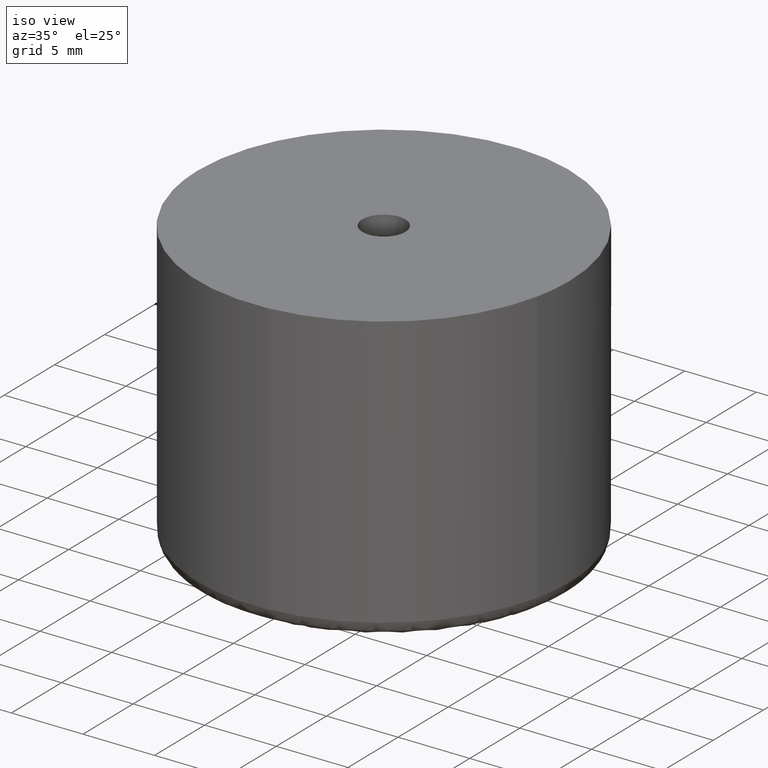
[diagram: clean part render]
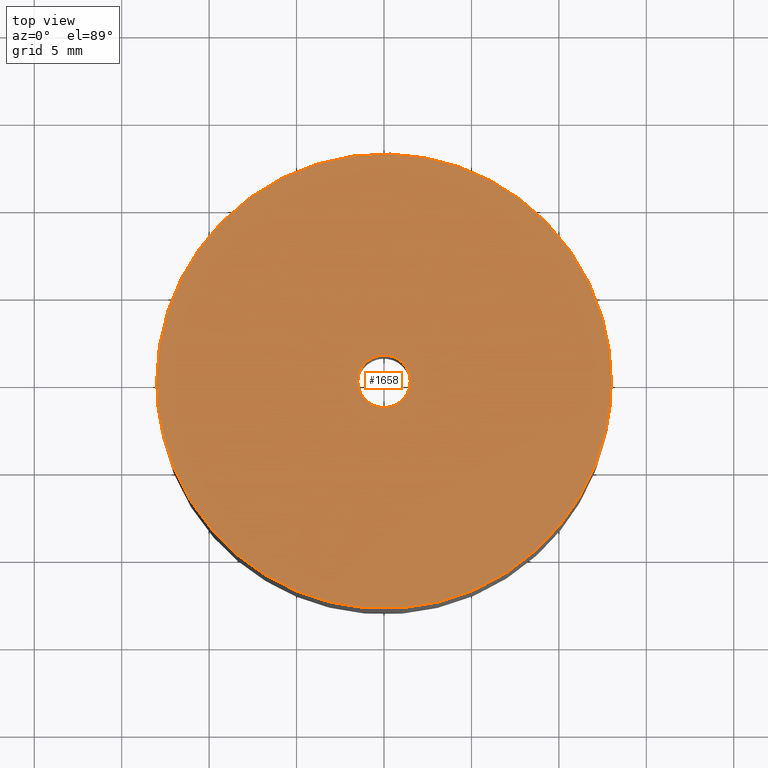
[diagram: tour spotlight — one face highlighted and labeled with its STEP entity id]
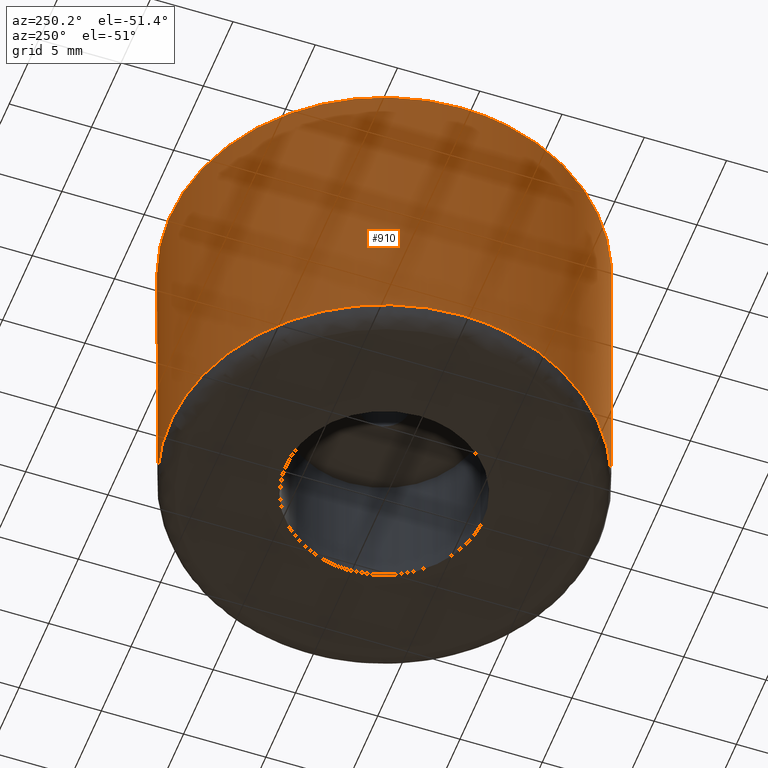
[diagram: tour spotlight — one face highlighted and labeled with its STEP entity id]
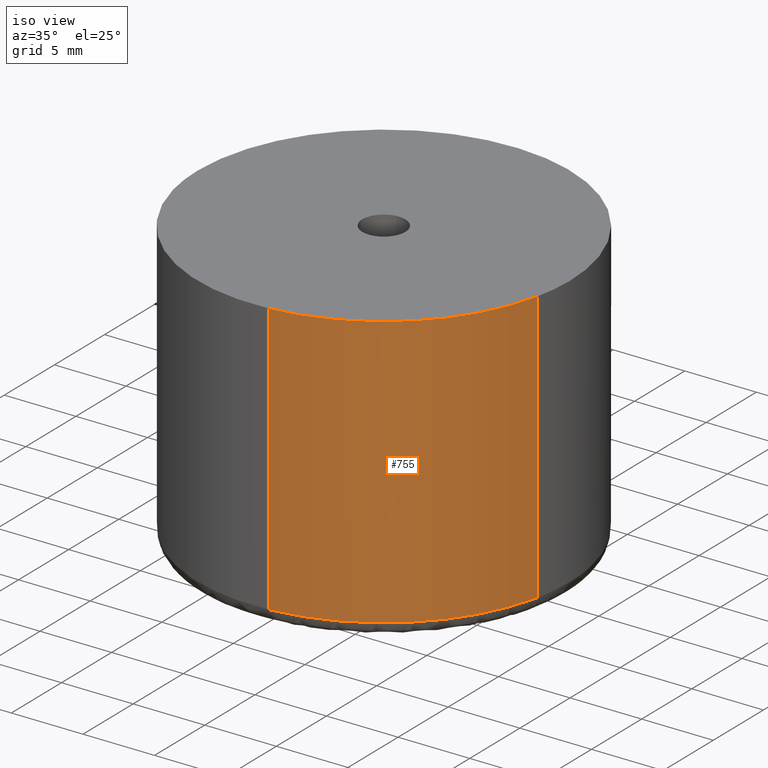
[diagram: tour spotlight — one face highlighted and labeled with its STEP entity id]
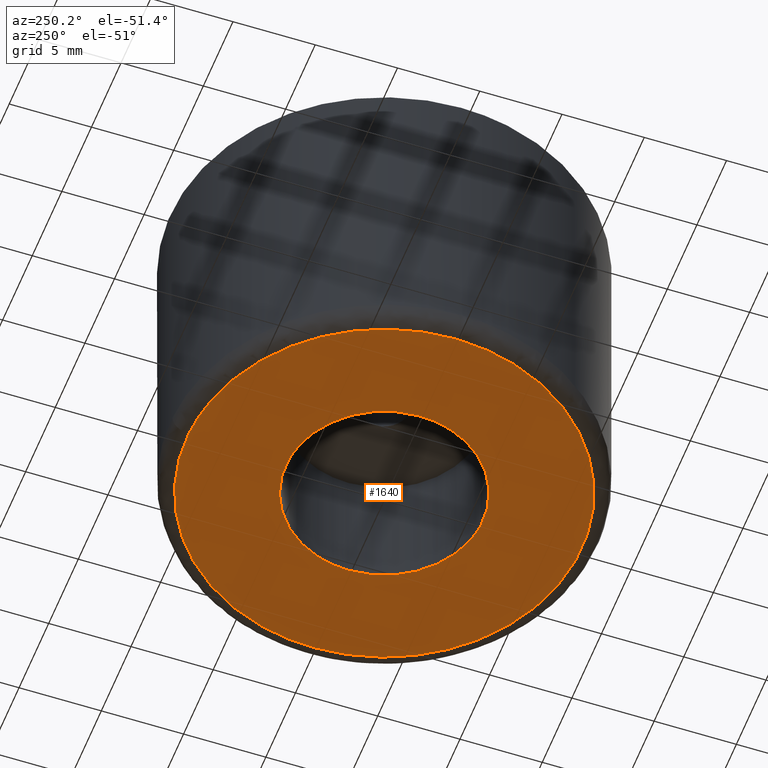
[diagram: tour spotlight — one face highlighted and labeled with its STEP entity id]
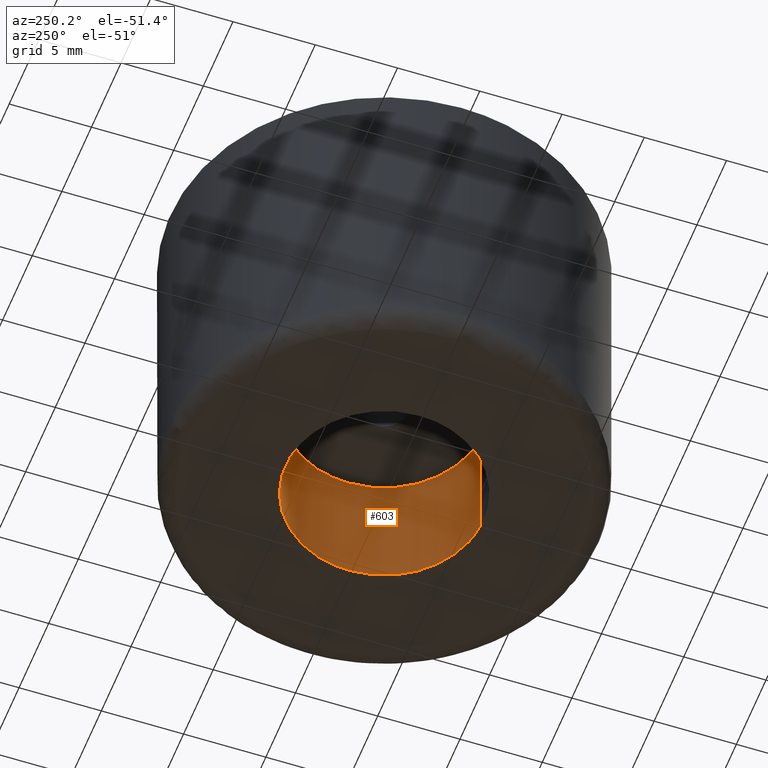
[diagram: tour spotlight — one face highlighted and labeled with its STEP entity id]
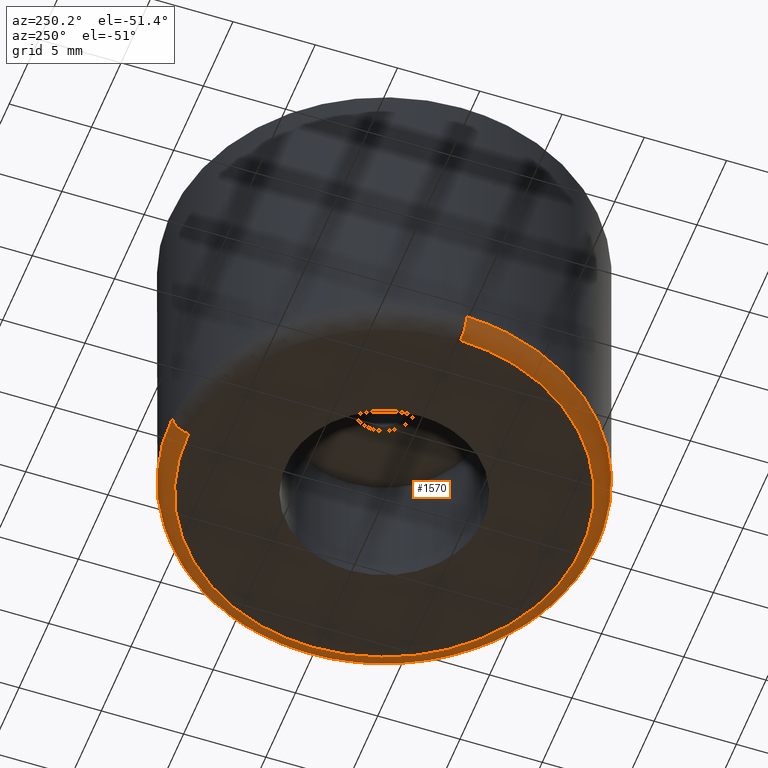
[diagram: tour spotlight — one face highlighted and labeled with its STEP entity id]
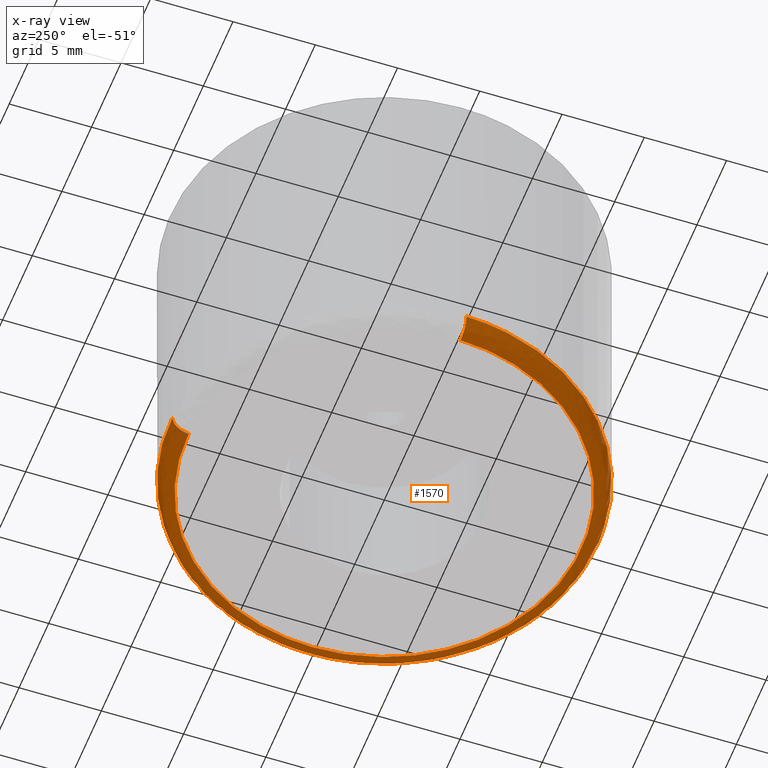
[diagram: x-ray of the same camera — body ghosted, this tour face saturated]
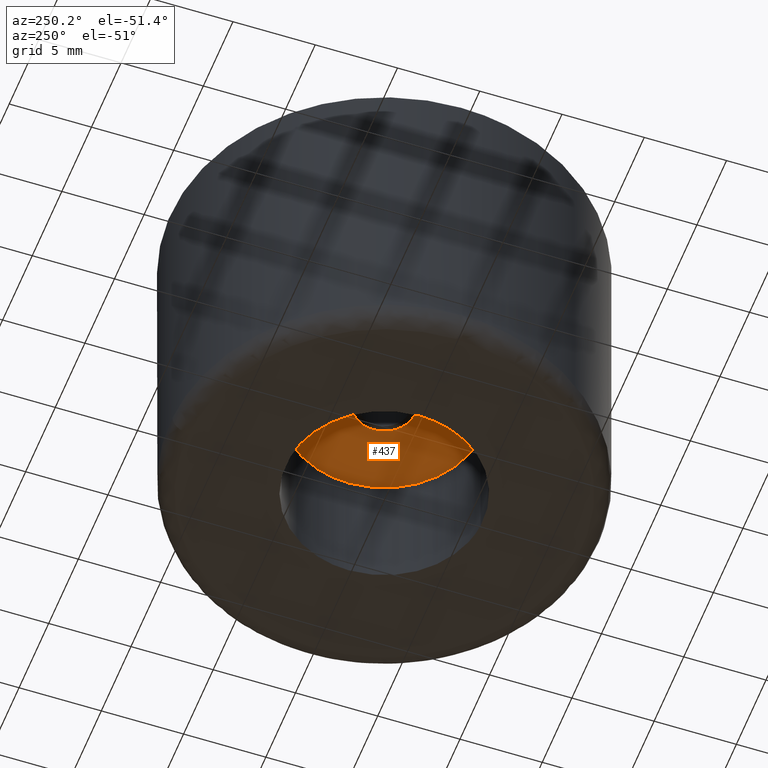
[diagram: tour spotlight — one face highlighted and labeled with its STEP entity id]
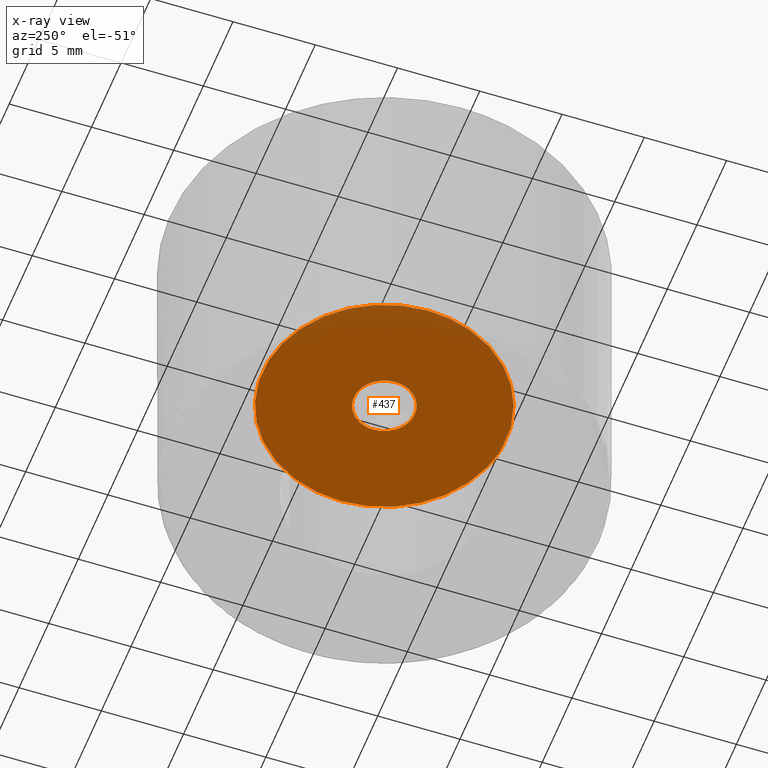
[diagram: x-ray of the same camera — body ghosted, this tour face saturated]
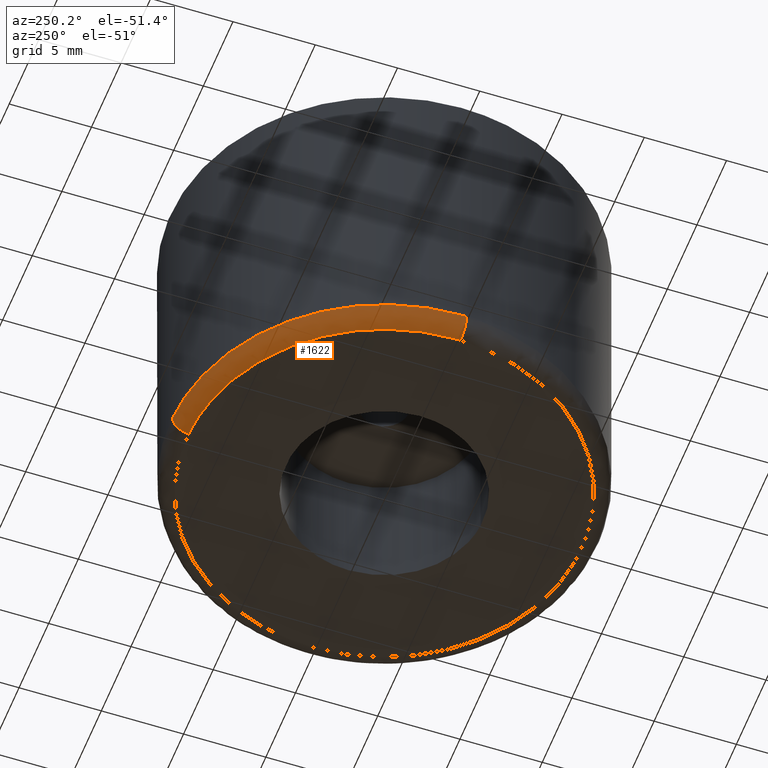
[diagram: tour spotlight — one face highlighted and labeled with its STEP entity id]
A machine part: a face-by-face anatomy tour. The part has 23 B-rep faces; the first image is the clean iso view, then the 8 largest visible faces are spotlighted one at a time (largest first), each with its STEP entity span.

Face 1 — top view, entity #1658. In plain terms, the highlighted face is a freeform B-spline surface patch.
Definition (entity closure, byte-faithful):
#726=CARTESIAN_POINT('',(12.687596976655650,-2.832822436703005,20.0));
#727=VERTEX_POINT('',#726);
#733=CARTESIAN_POINT('',(1.019960790914386,-12.959925925133270,20.0));
#734=VERTEX_POINT('',#733);
#735=CARTESIAN_POINT('',(12.687596976655650,-2.832822436703005,19.999999999999996));
#736=CARTESIAN_POINT('',(10.594716066193335,-12.206381883309835,20.000000000000004));
#737=CARTESIAN_POINT('',(1.019960790914386,-12.959925925133268,20.000000000000004));
#745=(BOUNDED_CURVE()B_SPLINE_CURVE(2,(#735,#736,#737),.UNSPECIFIED.,.F.,.U.)B_SPLINE_CURVE_WITH_KNOTS((3,3),(0.537286561689504,0.736331399222893),.UNSPECIFIED.)CURVE()GEOMETRIC_REPRESENTATION_ITEM()RATIONAL_B_SPLINE_CURVE((0.925662738128303,0.762027682414940,0.969723561921979))REPRESENTATION_ITEM(''));
#746=EDGE_CURVE('',#727,#734,#745,.T.);
#860=CARTESIAN_POINT('',(-13.0,0.0,20.0));
#861=VERTEX_POINT('',#860);
#862=CARTESIAN_POINT('',(1.019960790914386,-12.959925925133268,20.000000000000004));
#863=CARTESIAN_POINT('',(0.510767647031337,-13.0,20.0));
#864=CARTESIAN_POINT('',(0.0,-13.0,20.0));
#865=CARTESIAN_POINT('',(-13.0,-13.0,20.0));
#866=CARTESIAN_POINT('',(-13.0,0.0,20.0));
#874=(BOUNDED_CURVE()B_SPLINE_CURVE(2,(#862,#863,#864,#865,#866),.UNSPECIFIED.,.F.,.U.)B_SPLINE_CURVE_WITH_KNOTS((3,2,3),(0.736331399222893,0.750000000000000,1.0),.UNSPECIFIED.)CURVE()GEOMETRIC_REPRESENTATION_ITEM()RATIONAL_B_SPLINE_CURVE((0.969723561921979,0.983986238086868,1.0,0.707106781186547,1.0))REPRESENTATION_ITEM(''));
#875=EDGE_CURVE('',#734,#861,#874,.T.);
#877=CARTESIAN_POINT('',(13.0,0.0,20.0));
#878=VERTEX_POINT('',#877);
#879=CARTESIAN_POINT('',(-13.0,0.0,20.0));
#880=CARTESIAN_POINT('',(-13.0,13.0,20.0));
#881=CARTESIAN_POINT('',(0.0,13.0,20.0));
#882=CARTESIAN_POINT('',(13.0,13.0,20.0));
#883=CARTESIAN_POINT('',(13.0,0.0,20.0));
#891=(BOUNDED_CURVE()B_SPLINE_CURVE(2,(#879,#880,#881,#882,#883),.UNSPECIFIED.,.F.,.U.)B_SPLINE_CURVE_WITH_KNOTS((3,2,3),(0.0,0.250000000000000,0.500000000000000),.UNSPECIFIED.)CURVE()GEOMETRIC_REPRESENTATION_ITEM()RATIONAL_B_SPLINE_CURVE((1.0,0.707106781186547,1.0,0.707106781186547,1.0))REPRESENTATION_ITEM(''));
#892=EDGE_CURVE('',#861,#878,#891,.T.);
#894=CARTESIAN_POINT('',(13.0,0.0,20.0));
#895=CARTESIAN_POINT('',(13.000000000000005,-1.433637086046247,20.000000000000004));
#896=CARTESIAN_POINT('',(12.687596976655650,-2.832822436703005,19.999999999999996));
#904=(BOUNDED_CURVE()B_SPLINE_CURVE(2,(#894,#895,#896),.UNSPECIFIED.,.F.,.U.)B_SPLINE_CURVE_WITH_KNOTS((3,3),(0.500000000000000,0.537286561689504),.UNSPECIFIED.)CURVE()GEOMETRIC_REPRESENTATION_ITEM()RATIONAL_B_SPLINE_CURVE((1.0,0.956316075713099,0.925662738128303))REPRESENTATION_ITEM(''));
#905=EDGE_CURVE('',#878,#727,#904,.T.);
#933=CARTESIAN_POINT('',(-0.177051352032236,1.489514289539901,20.0));
#934=VERTEX_POINT('',#933);
#935=CARTESIAN_POINT('',(1.500000000000000,0.0,20.0));
#936=VERTEX_POINT('',#935);
#937=CARTESIAN_POINT('',(-0.177051352032236,1.489514289539901,19.999999999999996));
#938=CARTESIAN_POINT('',(-0.088836179525462,1.500000000000000,20.000000000000004));
#939=CARTESIAN_POINT('',(0.0,1.500000000000000,20.0));
#940=CARTESIAN_POINT('',(1.500000000000000,1.500000000000000,19.999999999999996));
#941=CARTESIAN_POINT('',(1.500000000000000,0.0,20.0));
#949=(BOUNDED_CURVE()B_SPLINE_CURVE(2,(#937,#938,#939,#940,#941),.UNSPECIFIED.,.F.,.U.)B_SPLINE_CURVE_WITH_KNOTS((3,2,3),(0.229562473504956,0.250000000000000,0.500000000000000),.UNSPECIFIED.)CURVE()GEOMETRIC_REPRESENTATION_ITEM()RATIONAL_B_SPLINE_CURVE((0.956026754166937,0.976055948321126,1.0,0.707106781186548,1.0))REPRESENTATION_ITEM(''));
#950=EDGE_CURVE('',#934,#936,#949,.T.);
#991=CARTESIAN_POINT('',(0.091572809317482,-1.497202197631871,20.0));
#992=VERTEX_POINT('',#991);
#998=CARTESIAN_POINT('',(1.500000000000000,0.0,20.0));
#999=CARTESIAN_POINT('',(1.500000000000000,-1.411059100329843,20.0));
#1000=CARTESIAN_POINT('',(0.091572809317482,-1.497202197631871,20.0));
#1008=(BOUNDED_CURVE()B_SPLINE_CURVE(2,(#998,#999,#1000),.UNSPECIFIED.,.F.,.U.)B_SPLINE_CURVE_WITH_KNOTS((3,3),(0.500000000000000,0.739332962238465),.UNSPECIFIED.)CURVE()GEOMETRIC_REPRESENTATION_ITEM()RATIONAL_B_SPLINE_CURVE((1.0,0.719603993287270,0.976072041665695))REPRESENTATION_ITEM(''));
#1009=EDGE_CURVE('',#936,#992,#1008,.T.);
#1032=CARTESIAN_POINT('',(-1.500000000000000,0.0,20.0));
#1033=VERTEX_POINT('',#1032);
#1034=CARTESIAN_POINT('',(-1.500000000000000,0.0,20.0));
#1035=CARTESIAN_POINT('',(-1.500000000000000,1.332261788842205,20.000000000000004));
#1036=CARTESIAN_POINT('',(-0.177051352032237,1.489514289539901,20.000000000000004));
#1044=(BOUNDED_CURVE()B_SPLINE_CURVE(2,(#1034,#1035,#1036),.UNSPECIFIED.,.F.,.U.)B_SPLINE_CURVE_WITH_KNOTS((3,3),(0.0,0.229562473504956),.UNSPECIFIED.)CURVE()GEOMETRIC_REPRESENTATION_ITEM()RATIONAL_B_SPLINE_CURVE((1.0,0.731050832865422,0.956026754166937))REPRESENTATION_ITEM(''));
#1045=EDGE_CURVE('',#1033,#934,#1044,.T.);
#1047=CARTESIAN_POINT('',(0.091572809317482,-1.497202197631870,20.0));
#1048=CARTESIAN_POINT('',(0.045829144963122,-1.500000000000000,19.999999999999996));
#1049=CARTESIAN_POINT('',(0.0,-1.500000000000000,20.0));
#1050=CARTESIAN_POINT('',(-1.500000000000000,-1.500000000000000,19.999999999999996));
#1051=CARTESIAN_POINT('',(-1.500000000000000,0.0,20.0));
#1059=(BOUNDED_CURVE()B_SPLINE_CURVE(2,(#1047,#1048,#1049,#1050,#1051),.UNSPECIFIED.,.F.,.U.)B_SPLINE_CURVE_WITH_KNOTS((3,2,3),(0.739332962238466,0.750000000000000,1.0),.UNSPECIFIED.)CURVE()GEOMETRIC_REPRESENTATION_ITEM()RATIONAL_B_SPLINE_CURVE((0.976072041665695,0.987502787899278,1.0,0.707106781186548,1.0))REPRESENTATION_ITEM(''));
#1060=EDGE_CURVE('',#992,#1033,#1059,.T.);
#1641=CARTESIAN_POINT('',(14.298699949606950,-14.294911992558539,20.0));
#1642=CARTESIAN_POINT('',(-14.298700646981301,-14.294911992558539,20.0));
#1643=CARTESIAN_POINT('',(14.298699949606950,14.298520439871851,20.0));
#1644=CARTESIAN_POINT('',(-14.298700646981301,14.298520439871851,20.0));
#1645=B_SPLINE_SURFACE_WITH_KNOTS('',1,1,((#1641,#1643),(#1642,#1644)),.UNSPECIFIED.,.F.,.F.,.U.,(2,2),(2,2),(0.0,28.597400596588251),(0.0,28.593432432430379),.UNSPECIFIED.);
#1646=ORIENTED_EDGE('',*,*,#875,.F.);
#1647=ORIENTED_EDGE('',*,*,#746,.F.);
#1648=ORIENTED_EDGE('',*,*,#905,.F.);
#1649=ORIENTED_EDGE('',*,*,#892,.F.);
#1650=EDGE_LOOP('',(#1646,#1647,#1648,#1649));
#1651=FACE_OUTER_BOUND('',#1650,.T.);
#1652=ORIENTED_EDGE('',*,*,#1009,.T.);
#1653=ORIENTED_EDGE('',*,*,#1060,.T.);
#1654=ORIENTED_EDGE('',*,*,#1045,.T.);
#1655=ORIENTED_EDGE('',*,*,#950,.T.);
#1656=EDGE_LOOP('',(#1652,#1653,#1654,#1655));
#1657=FACE_BOUND('',#1656,.T.);
#1658=ADVANCED_FACE('',(#1651,#1657),#1645,.F.);

Face 2 — auxiliary view, entity #910. In plain terms, the highlighted face is a freeform B-spline surface patch.
Definition (entity closure, byte-faithful):
#709=CARTESIAN_POINT('',(12.687596999485550,-2.832822334452530,1.000000000000004));
#710=VERTEX_POINT('',#709);
#711=CARTESIAN_POINT('',(1.019960697844671,-12.959925932457899,1.000000000000026));
#712=VERTEX_POINT('',#711);
#726=CARTESIAN_POINT('',(12.687596976655650,-2.832822436703005,20.0));
#727=VERTEX_POINT('',#726);
#728=CARTESIAN_POINT('',(12.687596976655650,-2.832822436703005,20.0));
#729=CARTESIAN_POINT('',(12.687596999485550,-2.832822334452530,1.000000000000004));
#730=QUASI_UNIFORM_CURVE('',1,(#728,#729),.UNSPECIFIED.,.F.,.U.);
#731=EDGE_CURVE('',#727,#710,#730,.T.);
#733=CARTESIAN_POINT('',(1.019960790914386,-12.959925925133270,20.0));
#734=VERTEX_POINT('',#733);
#748=CARTESIAN_POINT('',(1.019960790914386,-12.959925925133270,20.0));
#749=CARTESIAN_POINT('',(1.019960697844671,-12.959925932457899,1.000000000000026));
#750=QUASI_UNIFORM_CURVE('',1,(#748,#749),.UNSPECIFIED.,.F.,.U.);
#751=EDGE_CURVE('',#734,#712,#750,.T.);
#756=CARTESIAN_POINT('',(1.019968244461983,-12.959925338530660,20.475000000003600));
#757=CARTESIAN_POINT('',(-11.939957094068674,-13.979893582992641,20.475000000003604));
#758=CARTESIAN_POINT('',(-12.959925338530660,-1.019968244461983,20.475000000003600));
#759=CARTESIAN_POINT('',(-13.979893582992641,11.939957094068674,20.475000000003604));
#760=CARTESIAN_POINT('',(-1.019968244461983,12.959925338530660,20.475000000003600));
#761=CARTESIAN_POINT('',(11.939957094068674,13.979893582992641,20.475000000003604));
#762=CARTESIAN_POINT('',(12.959925338530660,1.019968244461983,20.475000000003600));
#763=CARTESIAN_POINT('',(13.113146095097436,-0.926886058307065,20.475000000003597));
#764=CARTESIAN_POINT('',(12.687595149701604,-2.832830619233736,20.475000000003593));
#765=CARTESIAN_POINT('',(1.019968244461983,-12.959925338530660,0.513124999852447));
#766=CARTESIAN_POINT('',(-11.939957094068674,-13.979893582992641,0.513124999852447));
#767=CARTESIAN_POINT('',(-12.959925338530660,-1.019968244461983,0.513124999852447));
#768=CARTESIAN_POINT('',(-13.979893582992641,11.939957094068674,0.513124999852447));
#769=CARTESIAN_POINT('',(-1.019968244461983,12.959925338530660,0.513124999852447));
#770=CARTESIAN_POINT('',(11.939957094068674,13.979893582992641,0.513124999852447));
#771=CARTESIAN_POINT('',(12.959925338530660,1.019968244461983,0.513124999852447));
#772=CARTESIAN_POINT('',(13.113146095097436,-0.926886058307065,0.513124999852447));
#773=CARTESIAN_POINT('',(12.687595149701604,-2.832830619233736,0.513124999852447));
#781=(BOUNDED_SURFACE()B_SPLINE_SURFACE(2,1,((#756,#765),(#757,#766),(#758,#767),(#759,#768),(#760,#769),(#761,#770),(#762,#771),(#763,#772),(#764,#773)),.UNSPECIFIED.,.F.,.F.,.U.)B_SPLINE_SURFACE_WITH_KNOTS((3,2,2,2,3),(2,2),(0.0,21.539105243400929,43.078210486801872,64.617315730202805,68.925136778882987),(0.0,19.961875000151149),.UNSPECIFIED.)GEOMETRIC_REPRESENTATION_ITEM()RATIONAL_B_SPLINE_SURFACE(((1.0,1.0),(0.707106781186548,0.707106781186548),(1.0,1.0),(0.707106781186548,0.707106781186548),(1.0,1.0),(0.707106781186548,0.707106781186548),(1.0,1.0),(0.941421356237310,0.941421356237310),(0.906274169979695,0.906274169979695)))REPRESENTATION_ITEM('')SURFACE());
#782=CARTESIAN_POINT('',(13.0,0.0,1.000000000000014));
#783=VERTEX_POINT('',#782);
#784=CARTESIAN_POINT('',(13.0,0.0,1.000000000000014));
#785=CARTESIAN_POINT('',(12.999999999999996,-1.433637033025100,1.000000000000014));
#786=CARTESIAN_POINT('',(12.687596999485551,-2.832822334452530,1.000000000000004));
#794=(BOUNDED_CURVE()B_SPLINE_CURVE(2,(#784,#785,#786),.UNSPECIFIED.,.F.,.U.)B_SPLINE_CURVE_WITH_KNOTS((3,3),(0.500000000000000,0.537286560370751),.UNSPECIFIED.)CURVE()GEOMETRIC_REPRESENTATION_ITEM()RATIONAL_B_SPLINE_CURVE((1.0,0.956316077258115,0.925662740296602))REPRESENTATION_ITEM(''));
#795=EDGE_CURVE('',#783,#710,#794,.T.);
#796=ORIENTED_EDGE('',*,*,#795,.F.);
#797=CARTESIAN_POINT('',(-0.326691240763947,12.995894460682880,0.999999999856145));
#798=VERTEX_POINT('',#797);
#799=CARTESIAN_POINT('',(-0.326691240763947,12.995894460682887,0.999999999856145));
#800=CARTESIAN_POINT('',(-0.163371417604494,13.000000000000004,1.000000000000014));
#801=CARTESIAN_POINT('',(0.0,13.0,1.000000000000014));
#802=CARTESIAN_POINT('',(13.0,13.0,1.000000000000014));
#803=CARTESIAN_POINT('',(13.0,0.0,1.000000000000014));
#811=(BOUNDED_CURVE()B_SPLINE_CURVE(2,(#799,#800,#801,#802,#803),.UNSPECIFIED.,.F.,.U.)B_SPLINE_CURVE_WITH_KNOTS((3,2,3),(0.245579891769793,0.250000000000000,0.500000000000000),.UNSPECIFIED.)CURVE()GEOMETRIC_REPRESENTATION_ITEM()RATIONAL_B_SPLINE_CURVE((0.989826157681542,0.994821521091803,1.0,0.707106781186547,1.0))REPRESENTATION_ITEM(''));
#812=EDGE_CURVE('',#798,#783,#811,.T.);
#813=ORIENTED_EDGE('',*,*,#812,.F.);
#814=CARTESIAN_POINT('',(-13.0,0.0,1.000000000000014));
#815=VERTEX_POINT('',#814);
#816=CARTESIAN_POINT('',(-13.0,0.0,1.000000000000014));
#817=CARTESIAN_POINT('',(-13.000000000000002,12.677312390347351,1.000000000000014));
#818=CARTESIAN_POINT('',(-0.326691240763947,12.995894460682887,0.999999999856145));
#826=(BOUNDED_CURVE()B_SPLINE_CURVE(2,(#816,#817,#818),.UNSPECIFIED.,.F.,.U.)B_SPLINE_CURVE_WITH_KNOTS((3,3),(0.0,0.245579891769793),.UNSPECIFIED.)CURVE()GEOMETRIC_REPRESENTATION_ITEM()RATIONAL_B_SPLINE_CURVE((1.0,0.712285260094745,0.989826157681542))REPRESENTATION_ITEM(''));
#827=EDGE_CURVE('',#815,#798,#826,.T.);
#828=ORIENTED_EDGE('',*,*,#827,.F.);
#829=CARTESIAN_POINT('',(-12.995894460682891,-0.326691240763720,0.999999999856132));
#830=VERTEX_POINT('',#829);
#831=CARTESIAN_POINT('',(-12.995894460682889,-0.326691240763720,0.999999999856132));
#832=CARTESIAN_POINT('',(-13.000000000000002,-0.163371417604268,1.000000000000014));
#833=CARTESIAN_POINT('',(-13.0,0.0,1.000000000000014));
#841=(BOUNDED_CURVE()B_SPLINE_CURVE(2,(#831,#832,#833),.UNSPECIFIED.,.F.,.U.)B_SPLINE_CURVE_WITH_KNOTS((3,3),(0.995579891769799,1.0),.UNSPECIFIED.)CURVE()GEOMETRIC_REPRESENTATION_ITEM()RATIONAL_B_SPLINE_CURVE((0.989826157681556,0.994821521091810,1.0))REPRESENTATION_ITEM(''));
#842=EDGE_CURVE('',#830,#815,#841,.T.);
#843=ORIENTED_EDGE('',*,*,#842,.F.);
#844=CARTESIAN_POINT('',(1.019960697844671,-12.959925932457905,1.000000000000026));
#845=CARTESIAN_POINT('',(0.510767600280531,-13.000000000000004,1.000000000000014));
#846=CARTESIAN_POINT('',(0.0,-13.0,1.000000000000014));
#847=CARTESIAN_POINT('',(-12.677312390347860,-13.0,1.000000000000014));
#848=CARTESIAN_POINT('',(-12.995894460682889,-0.326691240763720,0.999999999856132));
#856=(BOUNDED_CURVE()B_SPLINE_CURVE(2,(#844,#845,#846,#847,#848),.UNSPECIFIED.,.F.,.U.)B_SPLINE_CURVE_WITH_KNOTS((3,2,3),(0.736331400453952,0.750000000000000,0.995579891769800),.UNSPECIFIED.)CURVE()GEOMETRIC_REPRESENTATION_ITEM()RATIONAL_B_SPLINE_CURVE((0.969723564491107,0.983986239529144,1.0,0.712285260094736,0.989826157681558))REPRESENTATION_ITEM(''));
#857=EDGE_CURVE('',#712,#830,#856,.T.);
#858=ORIENTED_EDGE('',*,*,#857,.F.);
#859=ORIENTED_EDGE('',*,*,#751,.F.);
#860=CARTESIAN_POINT('',(-13.0,0.0,20.0));
#861=VERTEX_POINT('',#860);
#862=CARTESIAN_POINT('',(1.019960790914386,-12.959925925133268,20.000000000000004));
#863=CARTESIAN_POINT('',(0.510767647031337,-13.0,20.0));
#864=CARTESIAN_POINT('',(0.0,-13.0,20.0));
#865=CARTESIAN_POINT('',(-13.0,-13.0,20.0));
#866=CARTESIAN_POINT('',(-13.0,0.0,20.0));
#874=(BOUNDED_CURVE()B_SPLINE_CURVE(2,(#862,#863,#864,#865,#866),.UNSPECIFIED.,.F.,.U.)B_SPLINE_CURVE_WITH_KNOTS((3,2,3),(0.736331399222893,0.750000000000000,1.0),.UNSPECIFIED.)CURVE()GEOMETRIC_REPRESENTATION_ITEM()RATIONAL_B_SPLINE_CURVE((0.969723561921979,0.983986238086868,1.0,0.707106781186547,1.0))REPRESENTATION_ITEM(''));
#875=EDGE_CURVE('',#734,#861,#874,.T.);
#876=ORIENTED_EDGE('',*,*,#875,.T.);
#877=CARTESIAN_POINT('',(13.0,0.0,20.0));
#878=VERTEX_POINT('',#877);
#879=CARTESIAN_POINT('',(-13.0,0.0,20.0));
#880=CARTESIAN_POINT('',(-13.0,13.0,20.0));
#881=CARTESIAN_POINT('',(0.0,13.0,20.0));
#882=CARTESIAN_POINT('',(13.0,13.0,20.0));
#883=CARTESIAN_POINT('',(13.0,0.0,20.0));
#891=(BOUNDED_CURVE()B_SPLINE_CURVE(2,(#879,#880,#881,#882,#883),.UNSPECIFIED.,.F.,.U.)B_SPLINE_CURVE_WITH_KNOTS((3,2,3),(0.0,0.250000000000000,0.500000000000000),.UNSPECIFIED.)CURVE()GEOMETRIC_REPRESENTATION_ITEM()RATIONAL_B_SPLINE_CURVE((1.0,0.707106781186547,1.0,0.707106781186547,1.0))REPRESENTATION_ITEM(''));
#892=EDGE_CURVE('',#861,#878,#891,.T.);
#893=ORIENTED_EDGE('',*,*,#892,.T.);
#894=CARTESIAN_POINT('',(13.0,0.0,20.0));
#895=CARTESIAN_POINT('',(13.000000000000005,-1.433637086046247,20.000000000000004));
#896=CARTESIAN_POINT('',(12.687596976655650,-2.832822436703005,19.999999999999996));
#904=(BOUNDED_CURVE()B_SPLINE_CURVE(2,(#894,#895,#896),.UNSPECIFIED.,.F.,.U.)B_SPLINE_CURVE_WITH_KNOTS((3,3),(0.500000000000000,0.537286561689504),.UNSPECIFIED.)CURVE()GEOMETRIC_REPRESENTATION_ITEM()RATIONAL_B_SPLINE_CURVE((1.0,0.956316075713099,0.925662738128303))REPRESENTATION_ITEM(''));
#905=EDGE_CURVE('',#878,#727,#904,.T.);
#906=ORIENTED_EDGE('',*,*,#905,.T.);
#907=ORIENTED_EDGE('',*,*,#731,.T.);
#908=EDGE_LOOP('',(#796,#813,#828,#843,#858,#859,#876,#893,#906,#907));
#909=FACE_OUTER_BOUND('',#908,.T.);
#910=ADVANCED_FACE('',(#909),#781,.T.);

Face 3 — iso view, entity #755. In plain terms, the highlighted face is a freeform B-spline surface patch.
Definition (entity closure, byte-faithful):
#691=CARTESIAN_POINT('',(12.705251811717318,-2.753750501336992,20.475000000003593));
#692=CARTESIAN_POINT('',(12.696430323743089,-2.793259911915609,20.475000000003597));
#693=CARTESIAN_POINT('',(10.594710865327652,-12.206376751862107,20.475000000003604));
#694=CARTESIAN_POINT('',(0.983351133643640,-12.962807167651045,20.475000000003600));
#695=CARTESIAN_POINT('',(0.946819630360228,-12.965682259312320,20.475000000003593));
#696=CARTESIAN_POINT('',(12.705251811717318,-2.753750501336992,0.513124999852447));
#697=CARTESIAN_POINT('',(12.696430323743089,-2.793259911915609,0.513124999852447));
#698=CARTESIAN_POINT('',(10.594710865327652,-12.206376751862107,0.513124999852447));
#699=CARTESIAN_POINT('',(0.983351133643640,-12.962807167651045,0.513124999852447));
#700=CARTESIAN_POINT('',(0.946819630360228,-12.965682259312320,0.513124999852447));
#708=(BOUNDED_SURFACE()B_SPLINE_SURFACE(2,1,((#691,#696),(#692,#697),(#693,#698),(#694,#699),(#695,#700)),.UNSPECIFIED.,.F.,.F.,.U.)B_SPLINE_SURFACE_WITH_KNOTS((3,1,1,3),(2,2),(0.0,0.085578205599617,17.199411616126010,17.284989678366841),(0.0,19.961875000151149),.UNSPECIFIED.)GEOMETRIC_REPRESENTATION_ITEM()RATIONAL_B_SPLINE_SURFACE(((0.907680205931852,0.907680205931852),(0.906977187955774,0.906977187955774),(0.765685424949238,0.765685424949238),(1.001171694663996,1.001171694663996),(1.002343389327992,1.002343389327992)))REPRESENTATION_ITEM('')SURFACE());
#709=CARTESIAN_POINT('',(12.687596999485550,-2.832822334452530,1.000000000000004));
#710=VERTEX_POINT('',#709);
#711=CARTESIAN_POINT('',(1.019960697844671,-12.959925932457899,1.000000000000026));
#712=VERTEX_POINT('',#711);
#713=CARTESIAN_POINT('',(12.687596999485553,-2.832822334452531,1.000000000000004));
#714=CARTESIAN_POINT('',(10.594716131196428,-12.206381947379535,1.000000000000014));
#715=CARTESIAN_POINT('',(1.019960697844671,-12.959925932457905,1.000000000000026));
#723=(BOUNDED_CURVE()B_SPLINE_CURVE(2,(#713,#714,#715),.UNSPECIFIED.,.F.,.U.)B_SPLINE_CURVE_WITH_KNOTS((3,3),(0.537286560370751,0.736331400453952),.UNSPECIFIED.)CURVE()GEOMETRIC_REPRESENTATION_ITEM()RATIONAL_B_SPLINE_CURVE((0.925662740296602,0.762027680026814,0.969723564491107))REPRESENTATION_ITEM(''));
#724=EDGE_CURVE('',#710,#712,#723,.T.);
#725=ORIENTED_EDGE('',*,*,#724,.F.);
#726=CARTESIAN_POINT('',(12.687596976655650,-2.832822436703005,20.0));
#727=VERTEX_POINT('',#726);
#728=CARTESIAN_POINT('',(12.687596976655650,-2.832822436703005,20.0));
#729=CARTESIAN_POINT('',(12.687596999485550,-2.832822334452530,1.000000000000004));
#730=QUASI_UNIFORM_CURVE('',1,(#728,#729),.UNSPECIFIED.,.F.,.U.);
#731=EDGE_CURVE('',#727,#710,#730,.T.);
#732=ORIENTED_EDGE('',*,*,#731,.F.);
#733=CARTESIAN_POINT('',(1.019960790914386,-12.959925925133270,20.0));
#734=VERTEX_POINT('',#733);
#735=CARTESIAN_POINT('',(12.687596976655650,-2.832822436703005,19.999999999999996));
#736=CARTESIAN_POINT('',(10.594716066193335,-12.206381883309835,20.000000000000004));
#737=CARTESIAN_POINT('',(1.019960790914386,-12.959925925133268,20.000000000000004));
#745=(BOUNDED_CURVE()B_SPLINE_CURVE(2,(#735,#736,#737),.UNSPECIFIED.,.F.,.U.)B_SPLINE_CURVE_WITH_KNOTS((3,3),(0.537286561689504,0.736331399222893),.UNSPECIFIED.)CURVE()GEOMETRIC_REPRESENTATION_ITEM()RATIONAL_B_SPLINE_CURVE((0.925662738128303,0.762027682414940,0.969723561921979))REPRESENTATION_ITEM(''));
#746=EDGE_CURVE('',#727,#734,#745,.T.);
#747=ORIENTED_EDGE('',*,*,#746,.T.);
#748=CARTESIAN_POINT('',(1.019960790914386,-12.959925925133270,20.0));
#749=CARTESIAN_POINT('',(1.019960697844671,-12.959925932457899,1.000000000000026));
#750=QUASI_UNIFORM_CURVE('',1,(#748,#749),.UNSPECIFIED.,.F.,.U.);
#751=EDGE_CURVE('',#734,#712,#750,.T.);
#752=ORIENTED_EDGE('',*,*,#751,.T.);
#753=EDGE_LOOP('',(#725,#732,#747,#752));
#754=FACE_OUTER_BOUND('',#753,.T.);
#755=ADVANCED_FACE('',(#754),#708,.T.);

Face 4 — auxiliary view, entity #1640. In plain terms, the highlighted face is a freeform B-spline surface patch.
Definition (entity closure, byte-faithful):
#523=CARTESIAN_POINT('',(-0.708196321017467,5.958058238286496,-4.117171E-016));
#524=VERTEX_POINT('',#523);
#525=CARTESIAN_POINT('',(6.0,0.0,0.0));
#526=VERTEX_POINT('',#525);
#527=CARTESIAN_POINT('',(-0.708196321017467,5.958058238286496,-4.117171E-016));
#528=CARTESIAN_POINT('',(-0.355340126418063,6.0,0.0));
#529=CARTESIAN_POINT('',(0.0,6.0,0.0));
#530=CARTESIAN_POINT('',(6.0,6.0,0.0));
#531=CARTESIAN_POINT('',(6.0,0.0,0.0));
#539=(BOUNDED_CURVE()B_SPLINE_CURVE(2,(#527,#528,#529,#530,#531),.UNSPECIFIED.,.F.,.U.)B_SPLINE_CURVE_WITH_KNOTS((3,2,3),(0.229562731270752,0.250000000000000,0.500000000000000),.UNSPECIFIED.)CURVE()GEOMETRIC_REPRESENTATION_ITEM()RATIONAL_B_SPLINE_CURVE((0.956027259399068,0.976056250312540,1.0,0.707106781186548,1.0))REPRESENTATION_ITEM(''));
#540=EDGE_CURVE('',#524,#526,#539,.T.);
#542=CARTESIAN_POINT('',(0.366281832401029,-5.988809365739083,-1.629252E-014));
#543=VERTEX_POINT('',#542);
#544=CARTESIAN_POINT('',(6.0,0.0,0.0));
#545=CARTESIAN_POINT('',(6.0,-5.644245281695966,0.0));
#546=CARTESIAN_POINT('',(0.366281832401029,-5.988809365739083,-1.629252E-014));
#554=(BOUNDED_CURVE()B_SPLINE_CURVE(2,(#544,#545,#546),.UNSPECIFIED.,.F.,.U.)B_SPLINE_CURVE_WITH_KNOTS((3,3),(0.500000000000000,0.739333233209006),.UNSPECIFIED.)CURVE()GEOMETRIC_REPRESENTATION_ITEM()RATIONAL_B_SPLINE_CURVE((1.0,0.719603675825535,0.976072622407832))REPRESENTATION_ITEM(''));
#555=EDGE_CURVE('',#526,#543,#554,.T.);
#626=CARTESIAN_POINT('',(-6.0,0.0,0.0));
#627=VERTEX_POINT('',#626);
#628=CARTESIAN_POINT('',(-6.0,0.0,0.0));
#629=CARTESIAN_POINT('',(-5.999999999999999,5.329055340517229,0.0));
#630=CARTESIAN_POINT('',(-0.708196321017467,5.958058238286496,-4.117171E-016));
#638=(BOUNDED_CURVE()B_SPLINE_CURVE(2,(#628,#629,#630),.UNSPECIFIED.,.F.,.U.)B_SPLINE_CURVE_WITH_KNOTS((3,3),(0.0,0.229562731270752),.UNSPECIFIED.)CURVE()GEOMETRIC_REPRESENTATION_ITEM()RATIONAL_B_SPLINE_CURVE((1.0,0.731050530874008,0.956027259399068))REPRESENTATION_ITEM(''));
#639=EDGE_CURVE('',#627,#524,#638,.T.);
#673=CARTESIAN_POINT('',(0.366281832401029,-5.988809365739083,-1.629252E-014));
#674=CARTESIAN_POINT('',(0.183311864202960,-6.0,0.0));
#675=CARTESIAN_POINT('',(0.0,-6.0,0.0));
#676=CARTESIAN_POINT('',(-6.0,-6.0,0.0));
#677=CARTESIAN_POINT('',(-6.0,0.0,0.0));
#685=(BOUNDED_CURVE()B_SPLINE_CURVE(2,(#673,#674,#675,#676,#677),.UNSPECIFIED.,.F.,.U.)B_SPLINE_CURVE_WITH_KNOTS((3,2,3),(0.739333233209006,0.750000000000000,1.0),.UNSPECIFIED.)CURVE()GEOMETRIC_REPRESENTATION_ITEM()RATIONAL_B_SPLINE_CURVE((0.976072622407832,0.987503105361013,1.0,0.707106781186548,1.0))REPRESENTATION_ITEM(''));
#686=EDGE_CURVE('',#543,#627,#685,.T.);
#1502=CARTESIAN_POINT('',(-0.301561146003583,11.996210305784739,1.557101E-014));
#1503=VERTEX_POINT('',#1502);
#1504=CARTESIAN_POINT('',(12.0,0.0,0.0));
#1505=VERTEX_POINT('',#1504);
#1506=CARTESIAN_POINT('',(-0.301561146003583,11.996210305784739,1.557101E-014));
#1507=CARTESIAN_POINT('',(-0.150804385299742,12.000000000000004,1.421085E-014));
#1508=CARTESIAN_POINT('',(0.0,12.0,1.421085E-014));
#1509=CARTESIAN_POINT('',(12.0,12.0,1.421085E-014));
#1510=CARTESIAN_POINT('',(12.0,0.0,1.421085E-014));
#1518=(BOUNDED_CURVE()B_SPLINE_CURVE(2,(#1506,#1507,#1508,#1509,#1510),.UNSPECIFIED.,.F.,.U.)B_SPLINE_CURVE_WITH_KNOTS((3,2,3),(0.245579891775080,0.250000000000000,0.500000000000000),.UNSPECIFIED.)CURVE()GEOMETRIC_REPRESENTATION_ITEM()RATIONAL_B_SPLINE_CURVE((0.989826157693493,0.994821521097997,1.0,0.707106781186548,1.0))REPRESENTATION_ITEM(''));
#1519=EDGE_CURVE('',#1503,#1505,#1518,.T.);
#1538=CARTESIAN_POINT('',(-11.996209041027869,-0.301561114222903,1.529176E-012));
#1539=VERTEX_POINT('',#1538);
#1553=CARTESIAN_POINT('',(12.0,0.0,0.0));
#1554=CARTESIAN_POINT('',(12.000000007731089,-11.999999999805656,9.608599E-015));
#1555=CARTESIAN_POINT('',(0.000000622919063,-11.999999984341040,7.741964E-013));
#1556=CARTESIAN_POINT('',(-11.702133291494871,-11.999999969260285,1.519805E-012));
#1557=CARTESIAN_POINT('',(-11.996209041027868,-0.301561114222903,1.529176E-012));
#1565=(BOUNDED_CURVE()B_SPLINE_CURVE(2,(#1553,#1554,#1555,#1556,#1557),.UNSPECIFIED.,.F.,.U.)B_SPLINE_CURVE_WITH_KNOTS((3,2,3),(0.500000000000000,0.750000000000000,0.995579891772257),.UNSPECIFIED.)CURVE()GEOMETRIC_REPRESENTATION_ITEM()RATIONAL_B_SPLINE_CURVE((1.0,0.707106781186548,1.0,0.712285260091858,0.989826157687112))REPRESENTATION_ITEM(''));
#1566=EDGE_CURVE('',#1505,#1539,#1565,.T.);
#1588=CARTESIAN_POINT('',(-12.0,0.0,1.421085E-014));
#1589=VERTEX_POINT('',#1588);
#1590=CARTESIAN_POINT('',(-12.0,0.0,1.421085E-014));
#1591=CARTESIAN_POINT('',(-12.0,11.702134514520491,1.421085E-014));
#1592=CARTESIAN_POINT('',(-0.301561146003583,11.996210305784739,1.557101E-014));
#1600=(BOUNDED_CURVE()B_SPLINE_CURVE(2,(#1590,#1591,#1592),.UNSPECIFIED.,.F.,.U.)B_SPLINE_CURVE_WITH_KNOTS((3,3),(0.0,0.245579891775080),.UNSPECIFIED.)CURVE()GEOMETRIC_REPRESENTATION_ITEM()RATIONAL_B_SPLINE_CURVE((1.0,0.712285260088550,0.989826157693493))REPRESENTATION_ITEM(''));
#1601=EDGE_CURVE('',#1589,#1503,#1600,.T.);
#1603=CARTESIAN_POINT('',(-11.996209041027866,-0.301561114222903,1.529176E-012));
#1604=CARTESIAN_POINT('',(-11.999999384812023,-0.150804369931942,7.716932E-013));
#1605=CARTESIAN_POINT('',(-12.0,0.0,1.421085E-014));
#1613=(BOUNDED_CURVE()B_SPLINE_CURVE(2,(#1603,#1604,#1605),.UNSPECIFIED.,.F.,.U.)B_SPLINE_CURVE_WITH_KNOTS((3,3),(0.995579891772257,1.0),.UNSPECIFIED.)CURVE()GEOMETRIC_REPRESENTATION_ITEM()RATIONAL_B_SPLINE_CURVE((0.989826157687112,0.994821521094690,1.0))REPRESENTATION_ITEM(''));
#1614=EDGE_CURVE('',#1539,#1589,#1613,.T.);
#1623=CARTESIAN_POINT('',(-13.198799953483340,-13.197616487839481,7.105427E-015));
#1624=CARTESIAN_POINT('',(13.198800597213509,-13.197616487839481,7.105427E-015));
#1625=CARTESIAN_POINT('',(-13.198799953483340,13.194774311294660,7.105427E-015));
#1626=CARTESIAN_POINT('',(13.198800597213509,13.194774311294660,7.105427E-015));
#1627=B_SPLINE_SURFACE_WITH_KNOTS('',1,1,((#1623,#1625),(#1624,#1626)),.UNSPECIFIED.,.F.,.F.,.U.,(2,2),(2,2),(0.0,26.397600550696851),(0.0,26.392390799134130),.UNSPECIFIED.);
#1628=ORIENTED_EDGE('',*,*,#1601,.T.);
#1629=ORIENTED_EDGE('',*,*,#1519,.T.);
#1630=ORIENTED_EDGE('',*,*,#1566,.T.);
#1631=ORIENTED_EDGE('',*,*,#1614,.T.);
#1632=EDGE_LOOP('',(#1628,#1629,#1630,#1631));
#1633=FACE_OUTER_BOUND('',#1632,.T.);
#1634=ORIENTED_EDGE('',*,*,#555,.F.);
#1635=ORIENTED_EDGE('',*,*,#540,.F.);
#1636=ORIENTED_EDGE('',*,*,#639,.F.);
#1637=ORIENTED_EDGE('',*,*,#686,.F.);
#1638=EDGE_LOOP('',(#1634,#1635,#1636,#1637));
#1639=FACE_BOUND('',#1638,.T.);
#1640=ADVANCED_FACE('',(#1633,#1639),#1627,.F.);

Face 5 — auxiliary view, entity #603. In plain terms, the highlighted face is a freeform B-spline surface patch.
Definition (entity closure, byte-faithful):
#497=CARTESIAN_POINT('',(-0.796616156477390,5.947548200551763,8.200000000000001));
#498=CARTESIAN_POINT('',(-0.752286149670043,5.952817493833363,8.200000000000001));
#499=CARTESIAN_POINT('',(-0.537688371827866,5.978325692691634,8.199999999999999));
#500=CARTESIAN_POINT('',(-0.366291237209142,5.988808790531200,8.199999999999999));
#501=CARTESIAN_POINT('',(5.622517553322059,6.355100027740342,8.199999999999999));
#502=CARTESIAN_POINT('',(5.988808790531200,0.366291237209142,8.199999999999999));
#503=CARTESIAN_POINT('',(6.355100027740342,-5.622517553322059,8.199999999999999));
#504=CARTESIAN_POINT('',(0.323221002574818,-5.991443078931932,8.199999999999999));
#505=CARTESIAN_POINT('',(0.280406612700376,-5.994061719196798,8.199999999999999));
#506=CARTESIAN_POINT('',(-0.796616156477390,5.947548200551763,-0.205000000000000));
#507=CARTESIAN_POINT('',(-0.752286149670043,5.952817493833363,-0.205000000000000));
#508=CARTESIAN_POINT('',(-0.537688371827866,5.978325692691634,-0.205000000000000));
#509=CARTESIAN_POINT('',(-0.366291237209142,5.988808790531200,-0.205000000000000));
#510=CARTESIAN_POINT('',(5.622517553322059,6.355100027740342,-0.205000000000000));
#511=CARTESIAN_POINT('',(5.988808790531200,0.366291237209142,-0.205000000000000));
#512=CARTESIAN_POINT('',(6.355100027740342,-5.622517553322059,-0.205000000000000));
#513=CARTESIAN_POINT('',(0.323221002574818,-5.991443078931932,-0.205000000000000));
#514=CARTESIAN_POINT('',(0.280406612700376,-5.994061719196798,-0.205000000000000));
#522=(BOUNDED_SURFACE()B_SPLINE_SURFACE(2,1,((#497,#506),(#498,#507),(#499,#508),(#500,#509),(#501,#510),(#502,#511),(#503,#512),(#504,#513),(#505,#514)),.UNSPECIFIED.,.F.,.F.,.U.)B_SPLINE_SURFACE_WITH_KNOTS((3,1,2,2,1,3),(2,2),(0.0,0.101389130768249,0.499034150646421,10.440159647600700,20.381285144554980,20.482695664807789),(0.0,8.405000000000001),.UNSPECIFIED.)GEOMETRIC_REPRESENTATION_ITEM()RATIONAL_B_SPLINE_SURFACE(((0.972009341915756,0.972009341915756),(0.974757571355441,0.974757571355441),(0.988284271247462,0.988284271247462),(1.0,1.0),(0.707106781186548,0.707106781186548),(1.0,1.0),(0.707106781186548,0.707106781186548),(1.002987836106434,1.002987836106434),(1.005975672212868,1.005975672212868)))REPRESENTATION_ITEM('')SURFACE());
#523=CARTESIAN_POINT('',(-0.708196321017467,5.958058238286496,-4.117171E-016));
#524=VERTEX_POINT('',#523);
#525=CARTESIAN_POINT('',(6.0,0.0,0.0));
#526=VERTEX_POINT('',#525);
#527=CARTESIAN_POINT('',(-0.708196321017467,5.958058238286496,-4.117171E-016));
#528=CARTESIAN_POINT('',(-0.355340126418063,6.0,0.0));
#529=CARTESIAN_POINT('',(0.0,6.0,0.0));
#530=CARTESIAN_POINT('',(6.0,6.0,0.0));
#531=CARTESIAN_POINT('',(6.0,0.0,0.0));
#539=(BOUNDED_CURVE()B_SPLINE_CURVE(2,(#527,#528,#529,#530,#531),.UNSPECIFIED.,.F.,.U.)B_SPLINE_CURVE_WITH_KNOTS((3,2,3),(0.229562731270752,0.250000000000000,0.500000000000000),.UNSPECIFIED.)CURVE()GEOMETRIC_REPRESENTATION_ITEM()RATIONAL_B_SPLINE_CURVE((0.956027259399068,0.976056250312540,1.0,0.707106781186548,1.0))REPRESENTATION_ITEM(''));
#540=EDGE_CURVE('',#524,#526,#539,.T.);
#541=ORIENTED_EDGE('',*,*,#540,.T.);
#542=CARTESIAN_POINT('',(0.366281832401029,-5.988809365739083,-1.629252E-014));
#543=VERTEX_POINT('',#542);
#544=CARTESIAN_POINT('',(6.0,0.0,0.0));
#545=CARTESIAN_POINT('',(6.0,-5.644245281695966,0.0));
#546=CARTESIAN_POINT('',(0.366281832401029,-5.988809365739083,-1.629252E-014));
#554=(BOUNDED_CURVE()B_SPLINE_CURVE(2,(#544,#545,#546),.UNSPECIFIED.,.F.,.U.)B_SPLINE_CURVE_WITH_KNOTS((3,3),(0.500000000000000,0.739333233209006),.UNSPECIFIED.)CURVE()GEOMETRIC_REPRESENTATION_ITEM()RATIONAL_B_SPLINE_CURVE((1.0,0.719603675825535,0.976072622407832))REPRESENTATION_ITEM(''));
#555=EDGE_CURVE('',#526,#543,#554,.T.);
#556=ORIENTED_EDGE('',*,*,#555,.T.);
#557=CARTESIAN_POINT('',(0.366281948464238,-5.988809358640717,8.0));
#558=VERTEX_POINT('',#557);
#559=CARTESIAN_POINT('',(0.366281948464238,-5.988809358640717,8.0));
#560=CARTESIAN_POINT('',(0.366281832401029,-5.988809365739083,-1.629252E-014));
#561=QUASI_UNIFORM_CURVE('',1,(#559,#560),.UNSPECIFIED.,.F.,.U.);
#562=EDGE_CURVE('',#558,#543,#561,.T.);
#563=ORIENTED_EDGE('',*,*,#562,.F.);
#564=CARTESIAN_POINT('',(6.0,0.0,8.0));
#565=VERTEX_POINT('',#564);
#566=CARTESIAN_POINT('',(6.0,0.0,8.0));
#567=CARTESIAN_POINT('',(6.0,-5.644245172106031,8.0));
#568=CARTESIAN_POINT('',(0.366281948464238,-5.988809358640717,8.0));
#576=(BOUNDED_CURVE()B_SPLINE_CURVE(2,(#566,#567,#568),.UNSPECIFIED.,.F.,.U.)B_SPLINE_CURVE_WITH_KNOTS((3,3),(0.500000000000000,0.739333229865045),.UNSPECIFIED.)CURVE()GEOMETRIC_REPRESENTATION_ITEM()RATIONAL_B_SPLINE_CURVE((1.0,0.719603679743228,0.976072615241070))REPRESENTATION_ITEM(''));
#577=EDGE_CURVE('',#565,#558,#576,.T.);
#578=ORIENTED_EDGE('',*,*,#577,.F.);
#579=CARTESIAN_POINT('',(-0.708196433134403,5.958058224960043,8.0));
#580=VERTEX_POINT('',#579);
#581=CARTESIAN_POINT('',(-0.708196433134403,5.958058224960043,8.0));
#582=CARTESIAN_POINT('',(-0.355340183069149,6.0,8.0));
#583=CARTESIAN_POINT('',(0.0,6.0,8.0));
#584=CARTESIAN_POINT('',(6.0,6.0,8.0));
#585=CARTESIAN_POINT('',(6.0,0.0,8.0));
#593=(BOUNDED_CURVE()B_SPLINE_CURVE(2,(#581,#582,#583,#584,#585),.UNSPECIFIED.,.F.,.U.)B_SPLINE_CURVE_WITH_KNOTS((3,2,3),(0.229562728090499,0.250000000000000,0.500000000000000),.UNSPECIFIED.)CURVE()GEOMETRIC_REPRESENTATION_ITEM()RATIONAL_B_SPLINE_CURVE((0.956027253165626,0.976056246586641,1.0,0.707106781186548,1.0))REPRESENTATION_ITEM(''));
#594=EDGE_CURVE('',#580,#565,#593,.T.);
#595=ORIENTED_EDGE('',*,*,#594,.F.);
#596=CARTESIAN_POINT('',(-0.708196433134403,5.958058224960043,8.0));
#597=CARTESIAN_POINT('',(-0.708196321017467,5.958058238286496,-4.117171E-016));
#598=QUASI_UNIFORM_CURVE('',1,(#596,#597),.UNSPECIFIED.,.F.,.U.);
#599=EDGE_CURVE('',#580,#524,#598,.T.);
#600=ORIENTED_EDGE('',*,*,#599,.T.);
#601=EDGE_LOOP('',(#541,#556,#563,#578,#595,#600));
#602=FACE_OUTER_BOUND('',#601,.T.);
#603=ADVANCED_FACE('',(#602),#522,.F.);

Face 6 — auxiliary view, entity #1570. An x-ray twin of the same camera follows (body ghosted, this face saturated) — the face is partly hidden behind the body. In plain terms, the highlighted face is a freeform B-spline surface patch.
Definition (entity closure, byte-faithful):
#709=CARTESIAN_POINT('',(12.687596999485550,-2.832822334452530,1.000000000000004));
#710=VERTEX_POINT('',#709);
#711=CARTESIAN_POINT('',(1.019960697844671,-12.959925932457899,1.000000000000026));
#712=VERTEX_POINT('',#711);
#713=CARTESIAN_POINT('',(12.687596999485553,-2.832822334452531,1.000000000000004));
#714=CARTESIAN_POINT('',(10.594716131196428,-12.206381947379535,1.000000000000014));
#715=CARTESIAN_POINT('',(1.019960697844671,-12.959925932457905,1.000000000000026));
#723=(BOUNDED_CURVE()B_SPLINE_CURVE(2,(#713,#714,#715),.UNSPECIFIED.,.F.,.U.)B_SPLINE_CURVE_WITH_KNOTS((3,3),(0.537286560370751,0.736331400453952),.UNSPECIFIED.)CURVE()GEOMETRIC_REPRESENTATION_ITEM()RATIONAL_B_SPLINE_CURVE((0.925662740296602,0.762027680026814,0.969723564491107))REPRESENTATION_ITEM(''));
#724=EDGE_CURVE('',#710,#712,#723,.T.);
#782=CARTESIAN_POINT('',(13.0,0.0,1.000000000000014));
#783=VERTEX_POINT('',#782);
#784=CARTESIAN_POINT('',(13.0,0.0,1.000000000000014));
#785=CARTESIAN_POINT('',(12.999999999999996,-1.433637033025100,1.000000000000014));
#786=CARTESIAN_POINT('',(12.687596999485551,-2.832822334452530,1.000000000000004));
#794=(BOUNDED_CURVE()B_SPLINE_CURVE(2,(#784,#785,#786),.UNSPECIFIED.,.F.,.U.)B_SPLINE_CURVE_WITH_KNOTS((3,3),(0.500000000000000,0.537286560370751),.UNSPECIFIED.)CURVE()GEOMETRIC_REPRESENTATION_ITEM()RATIONAL_B_SPLINE_CURVE((1.0,0.956316077258115,0.925662740296602))REPRESENTATION_ITEM(''));
#795=EDGE_CURVE('',#783,#710,#794,.T.);
#797=CARTESIAN_POINT('',(-0.326691240763947,12.995894460682880,0.999999999856145));
#798=VERTEX_POINT('',#797);
#799=CARTESIAN_POINT('',(-0.326691240763947,12.995894460682887,0.999999999856145));
#800=CARTESIAN_POINT('',(-0.163371417604494,13.000000000000004,1.000000000000014));
#801=CARTESIAN_POINT('',(0.0,13.0,1.000000000000014));
#802=CARTESIAN_POINT('',(13.0,13.0,1.000000000000014));
#803=CARTESIAN_POINT('',(13.0,0.0,1.000000000000014));
#811=(BOUNDED_CURVE()B_SPLINE_CURVE(2,(#799,#800,#801,#802,#803),.UNSPECIFIED.,.F.,.U.)B_SPLINE_CURVE_WITH_KNOTS((3,2,3),(0.245579891769793,0.250000000000000,0.500000000000000),.UNSPECIFIED.)CURVE()GEOMETRIC_REPRESENTATION_ITEM()RATIONAL_B_SPLINE_CURVE((0.989826157681542,0.994821521091803,1.0,0.707106781186547,1.0))REPRESENTATION_ITEM(''));
#812=EDGE_CURVE('',#798,#783,#811,.T.);
#829=CARTESIAN_POINT('',(-12.995894460682891,-0.326691240763720,0.999999999856132));
#830=VERTEX_POINT('',#829);
#844=CARTESIAN_POINT('',(1.019960697844671,-12.959925932457905,1.000000000000026));
#845=CARTESIAN_POINT('',(0.510767600280531,-13.000000000000004,1.000000000000014));
#846=CARTESIAN_POINT('',(0.0,-13.0,1.000000000000014));
#847=CARTESIAN_POINT('',(-12.677312390347860,-13.0,1.000000000000014));
#848=CARTESIAN_POINT('',(-12.995894460682889,-0.326691240763720,0.999999999856132));
#856=(BOUNDED_CURVE()B_SPLINE_CURVE(2,(#844,#845,#846,#847,#848),.UNSPECIFIED.,.F.,.U.)B_SPLINE_CURVE_WITH_KNOTS((3,2,3),(0.736331400453952,0.750000000000000,0.995579891769800),.UNSPECIFIED.)CURVE()GEOMETRIC_REPRESENTATION_ITEM()RATIONAL_B_SPLINE_CURVE((0.969723564491107,0.983986239529144,1.0,0.712285260094736,0.989826157681558))REPRESENTATION_ITEM(''));
#857=EDGE_CURVE('',#712,#830,#856,.T.);
#1473=CARTESIAN_POINT('',(-0.326630081745611,12.993461533070644,1.069724239128093));
#1474=CARTESIAN_POINT('',(12.666831451325031,13.320091614816256,1.069724239128092));
#1475=CARTESIAN_POINT('',(12.993461533070644,0.326630081745612,1.069724239128093));
#1476=CARTESIAN_POINT('',(13.320091614816256,-12.666831451325027,1.069724239128092));
#1477=CARTESIAN_POINT('',(0.326630081745616,-12.993461533070644,1.069724239128093));
#1478=CARTESIAN_POINT('',(-12.666831451325027,-13.320091614816258,1.069724239128092));
#1479=CARTESIAN_POINT('',(-12.993461533070644,-0.326630081745616,1.069724239128093));
#1480=CARTESIAN_POINT('',(-0.328644839144800,13.073609303370695,-0.077337010691865));
#1481=CARTESIAN_POINT('',(12.744964464225895,13.402254142515494,-0.077337010691865));
#1482=CARTESIAN_POINT('',(13.073609303370695,0.328644839144801,-0.077337010691865));
#1483=CARTESIAN_POINT('',(13.402254142515497,-12.744964464225887,-0.077337010691865));
#1484=CARTESIAN_POINT('',(0.328644839144805,-13.073609303370695,-0.077337010691865));
#1485=CARTESIAN_POINT('',(-12.744964464225887,-13.402254142515497,-0.077337010691865));
#1486=CARTESIAN_POINT('',(-13.073609303370695,-0.328644839144806,-0.077337010691865));
#1487=CARTESIAN_POINT('',(-0.299818330100537,11.926880458318786,0.002407728772290));
#1488=CARTESIAN_POINT('',(11.627062128218251,12.226698788419325,0.002407728772290));
#1489=CARTESIAN_POINT('',(11.926880458318786,0.299818330100537,0.002407728772290));
#1490=CARTESIAN_POINT('',(12.226698788419325,-11.627062128218247,0.002407728772290));
#1491=CARTESIAN_POINT('',(0.299818330100541,-11.926880458318786,0.002407728772290));
#1492=CARTESIAN_POINT('',(-11.627062128218245,-12.226698788419325,0.002407728772290));
#1493=CARTESIAN_POINT('',(-11.926880458318786,-0.299818330100541,0.002407728772290));
#1501=(BOUNDED_SURFACE()B_SPLINE_SURFACE(2,2,((#1473,#1480,#1487),(#1474,#1481,#1488),(#1475,#1482,#1489),(#1476,#1483,#1490),(#1477,#1484,#1491),(#1478,#1485,#1492),(#1479,#1486,#1493)),.UNSPECIFIED.,.F.,.F.,.U.)B_SPLINE_SURFACE_WITH_KNOTS((3,2,2,3),(3,3),(0.0,21.535072963510679,43.070145927021350,64.605218890532029),(0.0,1.822371771683137),.UNSPECIFIED.)GEOMETRIC_REPRESENTATION_ITEM()RATIONAL_B_SPLINE_SURFACE(((0.910892963910916,0.599412685931412,0.915967102494346),(0.644098591716522,0.423848774951344,0.647686549517545),(0.910892963910916,0.599412685931412,0.915967102494346),(0.644098591716522,0.423848774951344,0.647686549517545),(0.910892963910916,0.599412685931412,0.915967102494346),(0.644098591716522,0.423848774951344,0.647686549517545),(0.910892963910916,0.599412685931412,0.915967102494346)))REPRESENTATION_ITEM('')SURFACE());
#1502=CARTESIAN_POINT('',(-0.301561146003583,11.996210305784739,1.557101E-014));
#1503=VERTEX_POINT('',#1502);
#1504=CARTESIAN_POINT('',(12.0,0.0,0.0));
#1505=VERTEX_POINT('',#1504);
#1506=CARTESIAN_POINT('',(-0.301561146003583,11.996210305784739,1.557101E-014));
#1507=CARTESIAN_POINT('',(-0.150804385299742,12.000000000000004,1.421085E-014));
#1508=CARTESIAN_POINT('',(0.0,12.0,1.421085E-014));
#1509=CARTESIAN_POINT('',(12.0,12.0,1.421085E-014));
#1510=CARTESIAN_POINT('',(12.0,0.0,1.421085E-014));
#1518=(BOUNDED_CURVE()B_SPLINE_CURVE(2,(#1506,#1507,#1508,#1509,#1510),.UNSPECIFIED.,.F.,.U.)B_SPLINE_CURVE_WITH_KNOTS((3,2,3),(0.245579891775080,0.250000000000000,0.500000000000000),.UNSPECIFIED.)CURVE()GEOMETRIC_REPRESENTATION_ITEM()RATIONAL_B_SPLINE_CURVE((0.989826157693493,0.994821521097997,1.0,0.707106781186548,1.0))REPRESENTATION_ITEM(''));
#1519=EDGE_CURVE('',#1503,#1505,#1518,.T.);
#1520=ORIENTED_EDGE('',*,*,#1519,.F.);
#1521=CARTESIAN_POINT('',(-0.326691240763947,12.995894460682887,0.999999999856145));
#1522=CARTESIAN_POINT('',(-0.326691240756156,12.995894460395249,0.000000068782938));
#1523=CARTESIAN_POINT('',(-0.301561146003583,11.996210305784748,1.557101E-014));
#1531=(BOUNDED_CURVE()B_SPLINE_CURVE(2,(#1521,#1522,#1523),.UNSPECIFIED.,.F.,.U.)B_SPLINE_CURVE_WITH_KNOTS((3,3),(-1.723441281688515,-0.263586950115615),.UNSPECIFIED.)CURVE()GEOMETRIC_REPRESENTATION_ITEM()RATIONAL_B_SPLINE_CURVE((0.883897567034251,0.626638739835554,0.888510383522929))REPRESENTATION_ITEM(''));
#1532=EDGE_CURVE('',#798,#1503,#1531,.T.);
#1533=ORIENTED_EDGE('',*,*,#1532,.F.);
#1534=ORIENTED_EDGE('',*,*,#812,.T.);
#1535=ORIENTED_EDGE('',*,*,#795,.T.);
#1536=ORIENTED_EDGE('',*,*,#724,.T.);
#1537=ORIENTED_EDGE('',*,*,#857,.T.);
#1538=CARTESIAN_POINT('',(-11.996209041027869,-0.301561114222903,1.529176E-012));
#1539=VERTEX_POINT('',#1538);
#1540=CARTESIAN_POINT('',(-12.995894460682893,-0.326691240763720,0.999999999856132));
#1541=CARTESIAN_POINT('',(-12.995894460395222,-0.326691240756155,-0.000001230765381));
#1542=CARTESIAN_POINT('',(-11.996209041027864,-0.301561114222903,1.529176E-012));
#1550=(BOUNDED_CURVE()B_SPLINE_CURVE(2,(#1540,#1541,#1542),.UNSPECIFIED.,.F.,.U.)B_SPLINE_CURVE_WITH_KNOTS((3,3),(-1.723441281688490,-0.263585605131602),.UNSPECIFIED.)CURVE()GEOMETRIC_REPRESENTATION_ITEM()RATIONAL_B_SPLINE_CURVE((0.883897567034243,0.626638502819439,0.888510866055314))REPRESENTATION_ITEM(''));
#1551=EDGE_CURVE('',#830,#1539,#1550,.T.);
#1552=ORIENTED_EDGE('',*,*,#1551,.T.);
#1553=CARTESIAN_POINT('',(12.0,0.0,0.0));
#1554=CARTESIAN_POINT('',(12.000000007731089,-11.999999999805656,9.608599E-015));
#1555=CARTESIAN_POINT('',(0.000000622919063,-11.999999984341040,7.741964E-013));
#1556=CARTESIAN_POINT('',(-11.702133291494871,-11.999999969260285,1.519805E-012));
#1557=CARTESIAN_POINT('',(-11.996209041027868,-0.301561114222903,1.529176E-012));
#1565=(BOUNDED_CURVE()B_SPLINE_CURVE(2,(#1553,#1554,#1555,#1556,#1557),.UNSPECIFIED.,.F.,.U.)B_SPLINE_CURVE_WITH_KNOTS((3,2,3),(0.500000000000000,0.750000000000000,0.995579891772257),.UNSPECIFIED.)CURVE()GEOMETRIC_REPRESENTATION_ITEM()RATIONAL_B_SPLINE_CURVE((1.0,0.707106781186548,1.0,0.712285260091858,0.989826157687112))REPRESENTATION_ITEM(''));
#1566=EDGE_CURVE('',#1505,#1539,#1565,.T.);
#1567=ORIENTED_EDGE('',*,*,#1566,.F.);
#1568=EDGE_LOOP('',(#1520,#1533,#1534,#1535,#1536,#1537,#1552,#1567));
#1569=FACE_OUTER_BOUND('',#1568,.T.);
#1570=ADVANCED_FACE('',(#1569),#1501,.T.);

Face 7 — auxiliary view, entity #437. An x-ray twin of the same camera follows (body ghosted, this face saturated) — the face is partly hidden behind the body. In plain terms, the highlighted face is a freeform B-spline surface patch.
Definition (entity closure, byte-faithful):
#66=CARTESIAN_POINT('',(-0.218360439729242,1.837067967809780,8.000000000000288));
#67=VERTEX_POINT('',#66);
#68=CARTESIAN_POINT('',(1.850000000000000,0.0,8.0));
#69=VERTEX_POINT('',#68);
#70=CARTESIAN_POINT('',(-0.218360439729242,1.837067967809780,8.000000000000288));
#71=CARTESIAN_POINT('',(-0.109563158863957,1.850000000000000,8.000000000000002));
#72=CARTESIAN_POINT('',(0.0,1.850000000000000,8.0));
#73=CARTESIAN_POINT('',(1.850000000000000,1.850000000000000,8.0));
#74=CARTESIAN_POINT('',(1.850000000000000,0.0,8.0));
#82=(BOUNDED_CURVE()B_SPLINE_CURVE(2,(#70,#71,#72,#73,#74),.UNSPECIFIED.,.F.,.U.)B_SPLINE_CURVE_WITH_KNOTS((3,2,3),(0.229562739788174,0.250000000000000,0.500000000000000),.UNSPECIFIED.)CURVE()GEOMETRIC_REPRESENTATION_ITEM()RATIONAL_B_SPLINE_CURVE((0.956027276093605,0.976056260291320,1.0,0.707106781186548,1.0))REPRESENTATION_ITEM(''));
#83=EDGE_CURVE('',#67,#69,#82,.T.);
#85=CARTESIAN_POINT('',(0.112939798165230,-1.846549377078879,8.0));
#86=VERTEX_POINT('',#85);
#87=CARTESIAN_POINT('',(1.850000000000000,0.0,8.0));
#88=CARTESIAN_POINT('',(1.850000000000000,-1.740306223726925,8.0));
#89=CARTESIAN_POINT('',(0.112939798165230,-1.846549377078879,8.0));
#97=(BOUNDED_CURVE()B_SPLINE_CURVE(2,(#87,#88,#89),.UNSPECIFIED.,.F.,.U.)B_SPLINE_CURVE_WITH_KNOTS((3,3),(0.500000000000000,0.739332962237158),.UNSPECIFIED.)CURVE()GEOMETRIC_REPRESENTATION_ITEM()RATIONAL_B_SPLINE_CURVE((1.0,0.719603993288802,0.976072041662892))REPRESENTATION_ITEM(''));
#98=EDGE_CURVE('',#69,#86,#97,.T.);
#169=CARTESIAN_POINT('',(-1.850000000000000,0.0,8.0));
#170=VERTEX_POINT('',#169);
#171=CARTESIAN_POINT('',(-1.850000000000000,0.0,8.0));
#172=CARTESIAN_POINT('',(-1.849999999999999,1.643125480052576,8.0));
#173=CARTESIAN_POINT('',(-0.218360439729242,1.837067967809780,8.000000000000288));
#181=(BOUNDED_CURVE()B_SPLINE_CURVE(2,(#171,#172,#173),.UNSPECIFIED.,.F.,.U.)B_SPLINE_CURVE_WITH_KNOTS((3,3),(0.0,0.229562739788174),.UNSPECIFIED.)CURVE()GEOMETRIC_REPRESENTATION_ITEM()RATIONAL_B_SPLINE_CURVE((1.0,0.731050520895227,0.956027276093605))REPRESENTATION_ITEM(''));
#182=EDGE_CURVE('',#170,#67,#181,.T.);
#216=CARTESIAN_POINT('',(0.112939798165230,-1.846549377078880,8.0));
#217=CARTESIAN_POINT('',(0.056522612128207,-1.850000000000000,8.0));
#218=CARTESIAN_POINT('',(0.0,-1.850000000000000,8.0));
#219=CARTESIAN_POINT('',(-1.850000000000000,-1.850000000000000,8.0));
#220=CARTESIAN_POINT('',(-1.850000000000000,0.0,8.0));
#228=(BOUNDED_CURVE()B_SPLINE_CURVE(2,(#216,#217,#218,#219,#220),.UNSPECIFIED.,.F.,.U.)B_SPLINE_CURVE_WITH_KNOTS((3,2,3),(0.739332962237157,0.750000000000000,1.0),.UNSPECIFIED.)CURVE()GEOMETRIC_REPRESENTATION_ITEM()RATIONAL_B_SPLINE_CURVE((0.976072041662890,0.987502787897745,1.0,0.707106781186548,1.0))REPRESENTATION_ITEM(''));
#229=EDGE_CURVE('',#86,#170,#228,.T.);
#256=CARTESIAN_POINT('',(-0.873450815768825,7.348270794712612,8.000000000000114));
#257=VERTEX_POINT('',#256);
#258=CARTESIAN_POINT('',(7.400000000000000,0.0,8.0));
#259=VERTEX_POINT('',#258);
#260=CARTESIAN_POINT('',(-0.873450815768825,7.348270794712612,8.000000000000114));
#261=CARTESIAN_POINT('',(-0.438257211754393,7.400000000000000,8.0));
#262=CARTESIAN_POINT('',(0.0,7.400000000000000,8.0));
#263=CARTESIAN_POINT('',(7.400000000000000,7.400000000000000,8.0));
#264=CARTESIAN_POINT('',(7.400000000000000,0.0,8.0));
#272=(BOUNDED_CURVE()B_SPLINE_CURVE(2,(#260,#261,#262,#263,#264),.UNSPECIFIED.,.F.,.U.)B_SPLINE_CURVE_WITH_KNOTS((3,2,3),(0.229562531489151,0.250000000000000,0.500000000000000),.UNSPECIFIED.)CURVE()GEOMETRIC_REPRESENTATION_ITEM()RATIONAL_B_SPLINE_CURVE((0.956026867818364,0.976056016253836,1.0,0.707106781186548,1.0))REPRESENTATION_ITEM(''));
#273=EDGE_CURVE('',#257,#259,#272,.T.);
#314=CARTESIAN_POINT('',(0.451750043877026,-7.386198067867737,8.000000000000345));
#315=VERTEX_POINT('',#314);
#321=CARTESIAN_POINT('',(7.400000000000000,0.0,8.0));
#322=CARTESIAN_POINT('',(7.400000000000000,-6.961233533520876,8.0));
#323=CARTESIAN_POINT('',(0.451750043877026,-7.386198067867738,8.000000000000345));
#331=(BOUNDED_CURVE()B_SPLINE_CURVE(2,(#321,#322,#323),.UNSPECIFIED.,.F.,.U.)B_SPLINE_CURVE_WITH_KNOTS((3,3),(0.500000000000000,0.739333175961649),.UNSPECIFIED.)CURVE()GEOMETRIC_REPRESENTATION_ITEM()RATIONAL_B_SPLINE_CURVE((1.0,0.719603742894985,0.976072499715589))REPRESENTATION_ITEM(''));
#332=EDGE_CURVE('',#259,#315,#331,.T.);
#355=CARTESIAN_POINT('',(-7.400000000000000,0.0,8.0));
#356=VERTEX_POINT('',#355);
#357=CARTESIAN_POINT('',(-7.400000000000000,0.0,8.0));
#358=CARTESIAN_POINT('',(-7.400000000000000,6.572493762486108,8.000000000000002));
#359=CARTESIAN_POINT('',(-0.873450815768825,7.348270794712612,8.000000000000114));
#367=(BOUNDED_CURVE()B_SPLINE_CURVE(2,(#357,#358,#359),.UNSPECIFIED.,.F.,.U.)B_SPLINE_CURVE_WITH_KNOTS((3,3),(0.0,0.229562531489151),.UNSPECIFIED.)CURVE()GEOMETRIC_REPRESENTATION_ITEM()RATIONAL_B_SPLINE_CURVE((1.0,0.731050764932712,0.956026867818364))REPRESENTATION_ITEM(''));
#368=EDGE_CURVE('',#356,#257,#367,.T.);
#370=CARTESIAN_POINT('',(0.451750043877026,-7.386198067867738,8.000000000000345));
#371=CARTESIAN_POINT('',(0.226085861243529,-7.400000000000000,8.0));
#372=CARTESIAN_POINT('',(0.0,-7.400000000000000,8.0));
#373=CARTESIAN_POINT('',(-7.400000000000000,-7.400000000000000,8.0));
#374=CARTESIAN_POINT('',(-7.400000000000000,0.0,8.0));
#382=(BOUNDED_CURVE()B_SPLINE_CURVE(2,(#370,#371,#372,#373,#374),.UNSPECIFIED.,.F.,.U.)B_SPLINE_CURVE_WITH_KNOTS((3,2,3),(0.739333175961649,0.750000000000000,1.0),.UNSPECIFIED.)CURVE()GEOMETRIC_REPRESENTATION_ITEM()RATIONAL_B_SPLINE_CURVE((0.976072499715589,0.987503038291563,1.0,0.707106781186548,1.0))REPRESENTATION_ITEM(''));
#383=EDGE_CURVE('',#315,#356,#382,.T.);
#420=CARTESIAN_POINT('',(-8.139260110246541,-8.139080417619462,8.0));
#421=CARTESIAN_POINT('',(8.139260374891164,-8.139080417619462,8.0));
#422=CARTESIAN_POINT('',(-8.139260110246541,8.139125407205340,8.0));
#423=CARTESIAN_POINT('',(8.139260374891164,8.139125407205340,8.0));
#424=B_SPLINE_SURFACE_WITH_KNOTS('',1,1,((#420,#422),(#421,#423)),.UNSPECIFIED.,.F.,.F.,.U.,(2,2),(2,2),(0.0,16.278520485137712),(0.0,16.278205824824798),.UNSPECIFIED.);
#425=ORIENTED_EDGE('',*,*,#368,.T.);
#426=ORIENTED_EDGE('',*,*,#273,.T.);
#427=ORIENTED_EDGE('',*,*,#332,.T.);
#428=ORIENTED_EDGE('',*,*,#383,.T.);
#429=EDGE_LOOP('',(#425,#426,#427,#428));
#430=FACE_OUTER_BOUND('',#429,.T.);
#431=ORIENTED_EDGE('',*,*,#98,.F.);
#432=ORIENTED_EDGE('',*,*,#83,.F.);
#433=ORIENTED_EDGE('',*,*,#182,.F.);
#434=ORIENTED_EDGE('',*,*,#229,.F.);
#435=EDGE_LOOP('',(#431,#432,#433,#434));
#436=FACE_BOUND('',#435,.T.);
#437=ADVANCED_FACE('',(#430,#436),#424,.F.);

Face 8 — auxiliary view, entity #1622. In plain terms, the highlighted face is a freeform B-spline surface patch.
Definition (entity closure, byte-faithful):
#797=CARTESIAN_POINT('',(-0.326691240763947,12.995894460682880,0.999999999856145));
#798=VERTEX_POINT('',#797);
#814=CARTESIAN_POINT('',(-13.0,0.0,1.000000000000014));
#815=VERTEX_POINT('',#814);
#816=CARTESIAN_POINT('',(-13.0,0.0,1.000000000000014));
#817=CARTESIAN_POINT('',(-13.000000000000002,12.677312390347351,1.000000000000014));
#818=CARTESIAN_POINT('',(-0.326691240763947,12.995894460682887,0.999999999856145));
#826=(BOUNDED_CURVE()B_SPLINE_CURVE(2,(#816,#817,#818),.UNSPECIFIED.,.F.,.U.)B_SPLINE_CURVE_WITH_KNOTS((3,3),(0.0,0.245579891769793),.UNSPECIFIED.)CURVE()GEOMETRIC_REPRESENTATION_ITEM()RATIONAL_B_SPLINE_CURVE((1.0,0.712285260094745,0.989826157681542))REPRESENTATION_ITEM(''));
#827=EDGE_CURVE('',#815,#798,#826,.T.);
#829=CARTESIAN_POINT('',(-12.995894460682891,-0.326691240763720,0.999999999856132));
#830=VERTEX_POINT('',#829);
#831=CARTESIAN_POINT('',(-12.995894460682889,-0.326691240763720,0.999999999856132));
#832=CARTESIAN_POINT('',(-13.000000000000002,-0.163371417604268,1.000000000000014));
#833=CARTESIAN_POINT('',(-13.0,0.0,1.000000000000014));
#841=(BOUNDED_CURVE()B_SPLINE_CURVE(2,(#831,#832,#833),.UNSPECIFIED.,.F.,.U.)B_SPLINE_CURVE_WITH_KNOTS((3,3),(0.995579891769799,1.0),.UNSPECIFIED.)CURVE()GEOMETRIC_REPRESENTATION_ITEM()RATIONAL_B_SPLINE_CURVE((0.989826157681556,0.994821521091810,1.0))REPRESENTATION_ITEM(''));
#842=EDGE_CURVE('',#830,#815,#841,.T.);
#1502=CARTESIAN_POINT('',(-0.301561146003583,11.996210305784739,1.557101E-014));
#1503=VERTEX_POINT('',#1502);
#1521=CARTESIAN_POINT('',(-0.326691240763947,12.995894460682887,0.999999999856145));
#1522=CARTESIAN_POINT('',(-0.326691240756156,12.995894460395249,0.000000068782938));
#1523=CARTESIAN_POINT('',(-0.301561146003583,11.996210305784748,1.557101E-014));
#1531=(BOUNDED_CURVE()B_SPLINE_CURVE(2,(#1521,#1522,#1523),.UNSPECIFIED.,.F.,.U.)B_SPLINE_CURVE_WITH_KNOTS((3,3),(-1.723441281688515,-0.263586950115615),.UNSPECIFIED.)CURVE()GEOMETRIC_REPRESENTATION_ITEM()RATIONAL_B_SPLINE_CURVE((0.883897567034251,0.626638739835554,0.888510383522929))REPRESENTATION_ITEM(''));
#1532=EDGE_CURVE('',#798,#1503,#1531,.T.);
#1538=CARTESIAN_POINT('',(-11.996209041027869,-0.301561114222903,1.529176E-012));
#1539=VERTEX_POINT('',#1538);
#1540=CARTESIAN_POINT('',(-12.995894460682893,-0.326691240763720,0.999999999856132));
#1541=CARTESIAN_POINT('',(-12.995894460395222,-0.326691240756155,-0.000001230765381));
#1542=CARTESIAN_POINT('',(-11.996209041027864,-0.301561114222903,1.529176E-012));
#1550=(BOUNDED_CURVE()B_SPLINE_CURVE(2,(#1540,#1541,#1542),.UNSPECIFIED.,.F.,.U.)B_SPLINE_CURVE_WITH_KNOTS((3,3),(-1.723441281688490,-0.263585605131602),.UNSPECIFIED.)CURVE()GEOMETRIC_REPRESENTATION_ITEM()RATIONAL_B_SPLINE_CURVE((0.883897567034243,0.626638502819439,0.888510866055314))REPRESENTATION_ITEM(''));
#1551=EDGE_CURVE('',#830,#1539,#1550,.T.);
#1571=CARTESIAN_POINT('',(-12.993461531505980,-0.326630081706278,1.069724261521371));
#1572=CARTESIAN_POINT('',(-13.320091613212256,12.666831449799698,1.069724261521371));
#1573=CARTESIAN_POINT('',(-0.326630081706279,12.993461531505980,1.069724261521371));
#1574=CARTESIAN_POINT('',(-13.073609367339698,-0.328644840752855,-0.077337556004689));
#1575=CARTESIAN_POINT('',(-13.402254208092550,12.744964526586841,-0.077337556004689));
#1576=CARTESIAN_POINT('',(-0.328644840752855,13.073609367339698,-0.077337556004689));
#1577=CARTESIAN_POINT('',(-11.926879990354873,-0.299818318336843,0.002407761315106));
#1578=CARTESIAN_POINT('',(-12.226698308691715,11.627061672018030,0.002407761315106));
#1579=CARTESIAN_POINT('',(-0.299818318336844,11.926879990354873,0.002407761315106));
#1587=(BOUNDED_SURFACE()B_SPLINE_SURFACE(2,2,((#1571,#1574,#1577),(#1572,#1575,#1578),(#1573,#1576,#1579)),.UNSPECIFIED.,.F.,.F.,.U.)B_SPLINE_SURFACE_WITH_KNOTS((3,3),(3,3),(0.0,21.535072960917422),(0.0,1.822372365114922),.UNSPECIFIED.)GEOMETRIC_REPRESENTATION_ITEM()RATIONAL_B_SPLINE_SURFACE(((0.910892973151577,0.599412584116369,0.915967299897522),(0.644098598250656,0.423848702957236,0.647686689102670),(0.910892973151577,0.599412584116369,0.915967299897522)))REPRESENTATION_ITEM('')SURFACE());
#1588=CARTESIAN_POINT('',(-12.0,0.0,1.421085E-014));
#1589=VERTEX_POINT('',#1588);
#1590=CARTESIAN_POINT('',(-12.0,0.0,1.421085E-014));
#1591=CARTESIAN_POINT('',(-12.0,11.702134514520491,1.421085E-014));
#1592=CARTESIAN_POINT('',(-0.301561146003583,11.996210305784739,1.557101E-014));
#1600=(BOUNDED_CURVE()B_SPLINE_CURVE(2,(#1590,#1591,#1592),.UNSPECIFIED.,.F.,.U.)B_SPLINE_CURVE_WITH_KNOTS((3,3),(0.0,0.245579891775080),.UNSPECIFIED.)CURVE()GEOMETRIC_REPRESENTATION_ITEM()RATIONAL_B_SPLINE_CURVE((1.0,0.712285260088550,0.989826157693493))REPRESENTATION_ITEM(''));
#1601=EDGE_CURVE('',#1589,#1503,#1600,.T.);
#1602=ORIENTED_EDGE('',*,*,#1601,.F.);
#1603=CARTESIAN_POINT('',(-11.996209041027866,-0.301561114222903,1.529176E-012));
#1604=CARTESIAN_POINT('',(-11.999999384812023,-0.150804369931942,7.716932E-013));
#1605=CARTESIAN_POINT('',(-12.0,0.0,1.421085E-014));
#1613=(BOUNDED_CURVE()B_SPLINE_CURVE(2,(#1603,#1604,#1605),.UNSPECIFIED.,.F.,.U.)B_SPLINE_CURVE_WITH_KNOTS((3,3),(0.995579891772257,1.0),.UNSPECIFIED.)CURVE()GEOMETRIC_REPRESENTATION_ITEM()RATIONAL_B_SPLINE_CURVE((0.989826157687112,0.994821521094690,1.0))REPRESENTATION_ITEM(''));
#1614=EDGE_CURVE('',#1539,#1589,#1613,.T.);
#1615=ORIENTED_EDGE('',*,*,#1614,.F.);
#1616=ORIENTED_EDGE('',*,*,#1551,.F.);
#1617=ORIENTED_EDGE('',*,*,#842,.T.);
#1618=ORIENTED_EDGE('',*,*,#827,.T.);
#1619=ORIENTED_EDGE('',*,*,#1532,.T.);
#1620=EDGE_LOOP('',(#1602,#1615,#1616,#1617,#1618,#1619));
#1621=FACE_OUTER_BOUND('',#1620,.T.);
#1622=ADVANCED_FACE('',(#1621),#1587,.T.);